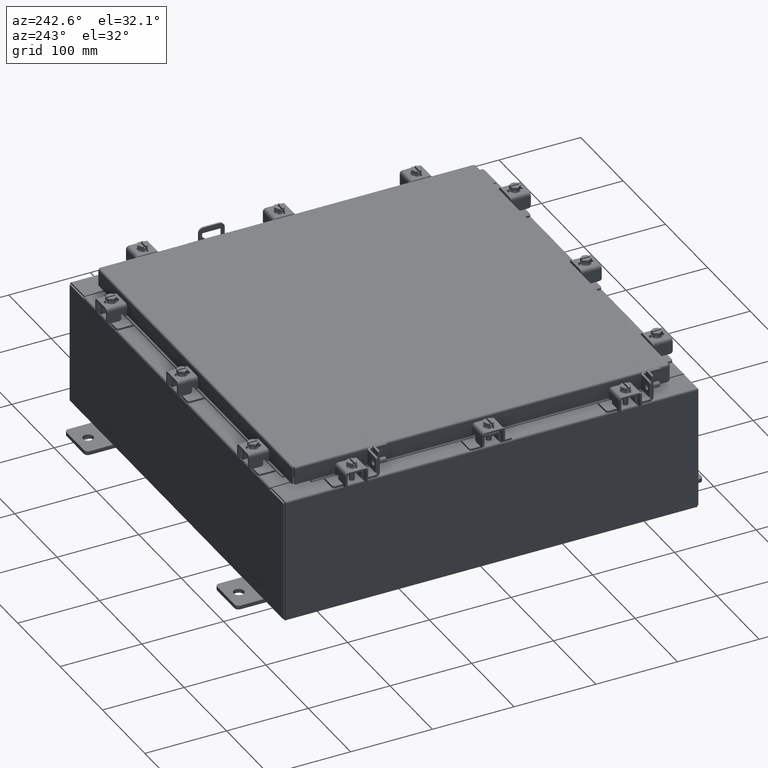
[diagram: clean part render]
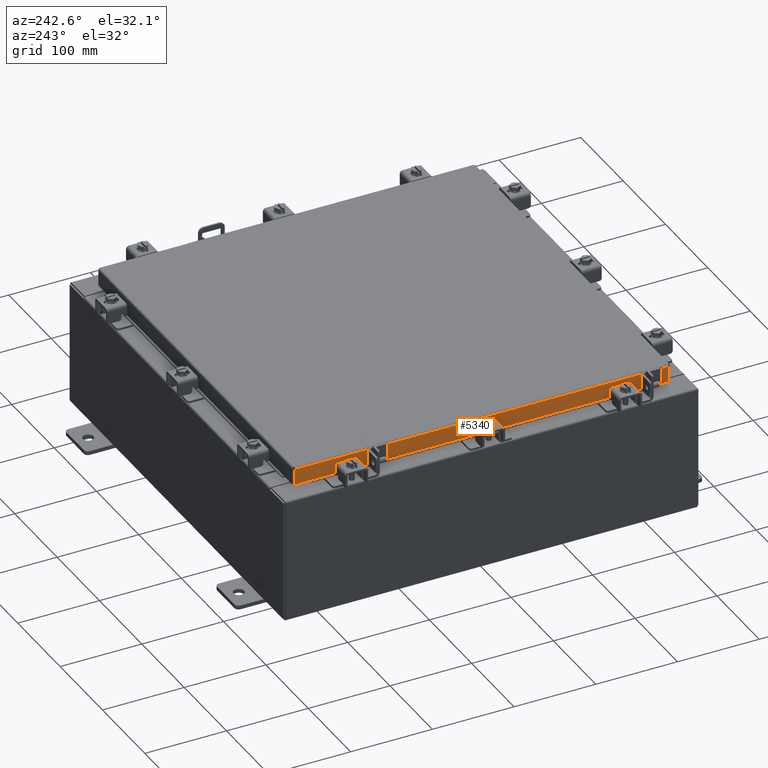
[diagram: same view with one face highlighted and labeled with its STEP entity id]
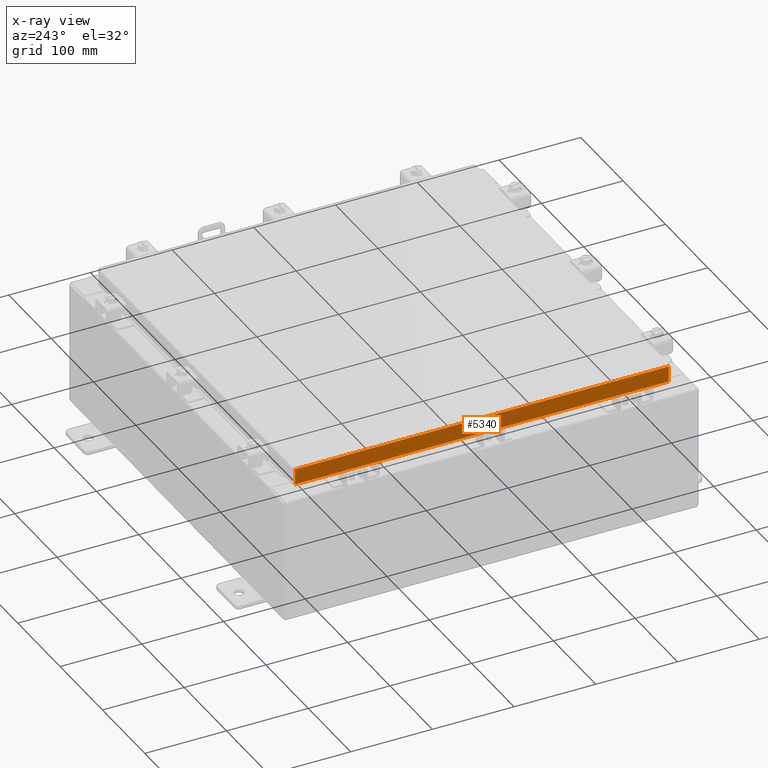
[diagram: x-ray of the same camera — body ghosted, the highlighted face saturated]
A machine part, auxiliary view. The second image highlights one B-rep face of the part: STEP entity #5340.
The next image is the same camera in x-ray: the body ghosted, the highlighted face saturated — about 0% of this face is hidden behind the body in this view.
In plain terms, the highlighted planar face has unit normal (1, 0, -0).
Its self-contained STEP definition (entity closure, byte-faithful):
#1054 = LINE ( 'NONE', #14135, #9790 ) ;
#1163 = VECTOR ( 'NONE', #16786, 39.37007874015748100 ) ;
#1307 = CARTESIAN_POINT ( 'NONE',  ( -9.093999999999999400, -9.005157864376268900, -0.08770000000000026400 ) ) ;
#2007 = EDGE_CURVE ( 'NONE', #17422, #17624, #21605, .T. ) ;
#2041 = EDGE_CURVE ( 'NONE', #2227, #15933, #2520, .T. ) ;
#2227 = VERTEX_POINT ( 'NONE', #11880 ) ;
#2251 = ORIENTED_EDGE ( 'NONE', *, *, #11810, .F. ) ;
#2520 = LINE ( 'NONE', #4064, #6656 ) ;
#2617 = EDGE_LOOP ( 'NONE', ( #5023, #11232, #13746, #20692, #3827, #2251 ) ) ;
#3078 = VECTOR ( 'NONE', #16186, 39.37007874015748100 ) ;
#3827 = ORIENTED_EDGE ( 'NONE', *, *, #13530, .F. ) ;
#4064 = CARTESIAN_POINT ( 'NONE',  ( -9.093999999999999400, -9.093999999999999400, -0.08770000000000026400 ) ) ;
#5023 = ORIENTED_EDGE ( 'NONE', *, *, #2041, .F. ) ;
#5340 = ADVANCED_FACE ( 'NONE', ( #20230 ), #11415, .F. ) ;
#5542 = CARTESIAN_POINT ( 'NONE',  ( -9.093999999999997600, -8.255157864376263500, -0.8500000000000020900 ) ) ;
#5915 = VECTOR ( 'NONE', #17735, 39.37007874015748100 ) ;
#6235 = DIRECTION ( 'NONE',  ( 1.000000000000000000, 3.387180227794634300E-031, -2.818880942772360500E-015 ) ) ;
#6324 = CARTESIAN_POINT ( 'NONE',  ( -9.094000000000001200, -9.005157864376261800, -0.8499999999999999800 ) ) ;
#6346 = CARTESIAN_POINT ( 'NONE',  ( -9.094000000000001200, -9.093999999999999400, -0.8499999999999999800 ) ) ;
#6348 = CARTESIAN_POINT ( 'NONE',  ( -9.093999999999997600, 8.255157864376267100, -0.8500000000000020900 ) ) ;
#6432 = LINE ( 'NONE', #15883, #19762 ) ;
#6656 = VECTOR ( 'NONE', #11788, 39.37007874015748100 ) ;
#8369 = VERTEX_POINT ( 'NONE', #6324 ) ;
#9605 = EDGE_CURVE ( 'NONE', #2227, #17624, #1054, .T. ) ;
#9790 = VECTOR ( 'NONE', #15890, 39.37007874015748100 ) ;
#9817 = VERTEX_POINT ( 'NONE', #11470 ) ;
#10549 = LINE ( 'NONE', #5542, #5915 ) ;
#11232 = ORIENTED_EDGE ( 'NONE', *, *, #9605, .T. ) ;
#11415 = PLANE ( 'NONE',  #12732 ) ;
#11470 = CARTESIAN_POINT ( 'NONE',  ( -9.093999999999997600, -8.255157864376261800, -0.8500000000000020900 ) ) ;
#11788 = DIRECTION ( 'NONE',  ( 5.080770341691952100E-031, -1.000000000000000000, 6.008022858289562200E-017 ) ) ;
#11810 = EDGE_CURVE ( 'NONE', #15933, #8369, #6432, .T. ) ;
#11880 = CARTESIAN_POINT ( 'NONE',  ( -9.093999999999999400, 9.005157864376267100, -0.08770000000000136000 ) ) ;
#12732 = AXIS2_PLACEMENT_3D ( 'NONE', #14814, #6235, #18431 ) ;
#13530 = EDGE_CURVE ( 'NONE', #8369, #9817, #14505, .T. ) ;
#13746 = ORIENTED_EDGE ( 'NONE', *, *, #2007, .F. ) ;
#14127 = DIRECTION ( 'NONE',  ( -2.818880942772360500E-015, 6.982962677686265900E-015, -1.000000000000000000 ) ) ;
#14135 = CARTESIAN_POINT ( 'NONE',  ( -9.093999999999999400, 9.005157864376267100, 8.851187499472213200E-014 ) ) ;
#14356 = CARTESIAN_POINT ( 'NONE',  ( -9.094000000000001200, -9.093999999999999400, -0.8499999999999999800 ) ) ;
#14505 = LINE ( 'NONE', #6346, #1163 ) ;
#14814 = CARTESIAN_POINT ( 'NONE',  ( -9.093999999999999400, 0.0000000000000000000, 2.622574073917692700E-014 ) ) ;
#14857 = EDGE_CURVE ( 'NONE', #9817, #17422, #10549, .T. ) ;
#15883 = CARTESIAN_POINT ( 'NONE',  ( -9.093999999999999400, -9.005157864376267100, -0.07470000000000015500 ) ) ;
#15890 = DIRECTION ( 'NONE',  ( -2.818880942772360500E-015, 6.982962677686265900E-015, -1.000000000000000000 ) ) ;
#15933 = VERTEX_POINT ( 'NONE', #1307 ) ;
#16186 = DIRECTION ( 'NONE',  ( 4.379057701015053300E-047, 1.000000000000000000, 1.201604571657912400E-016 ) ) ;
#16786 = DIRECTION ( 'NONE',  ( 4.379057701015053300E-047, 1.000000000000000000, 1.201604571657912400E-016 ) ) ;
#17422 = VERTEX_POINT ( 'NONE', #6348 ) ;
#17624 = VERTEX_POINT ( 'NONE', #20707 ) ;
#17735 = DIRECTION ( 'NONE',  ( -0.0000000000000000000, 1.000000000000000000, -0.0000000000000000000 ) ) ;
#18431 = DIRECTION ( 'NONE',  ( -2.818880942772360500E-015, 0.0000000000000000000, -1.000000000000000000 ) ) ;
#19762 = VECTOR ( 'NONE', #14127, 39.37007874015748100 ) ;
#20230 = FACE_OUTER_BOUND ( 'NONE', #2617, .T. ) ;
#20692 = ORIENTED_EDGE ( 'NONE', *, *, #14857, .F. ) ;
#20707 = CARTESIAN_POINT ( 'NONE',  ( -9.094000000000001200, 9.005157864376274200, -0.8499999999999977600 ) ) ;
#21605 = LINE ( 'NONE', #14356, #3078 ) ;